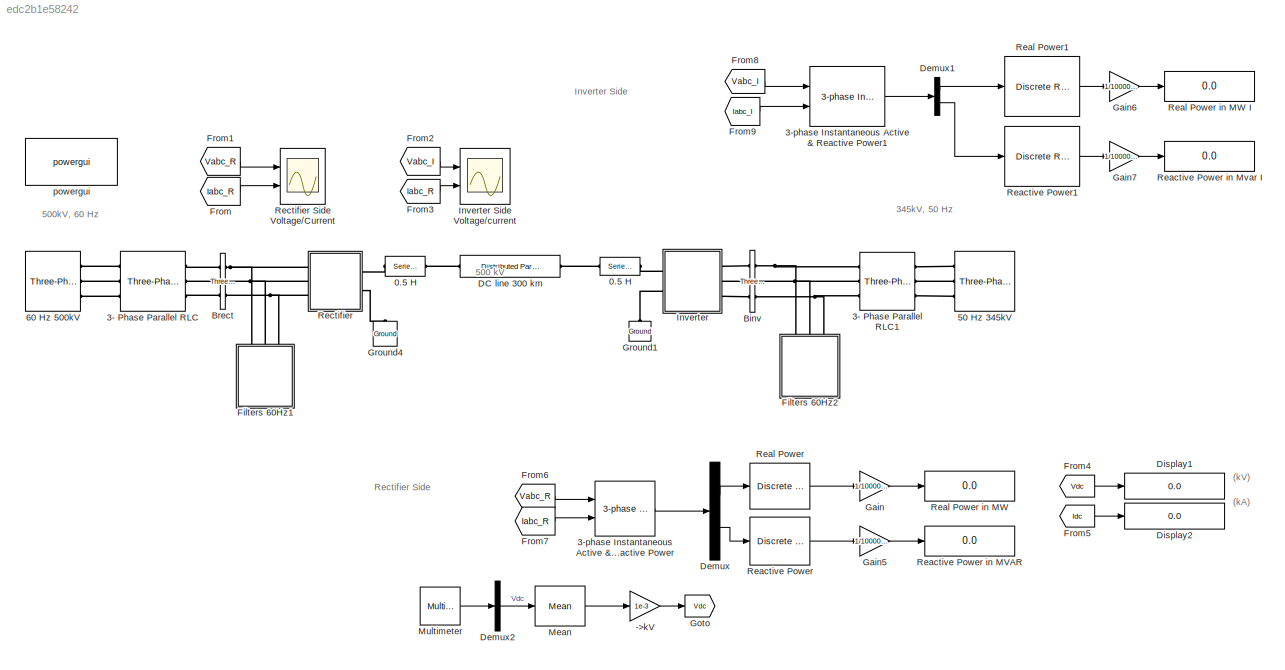
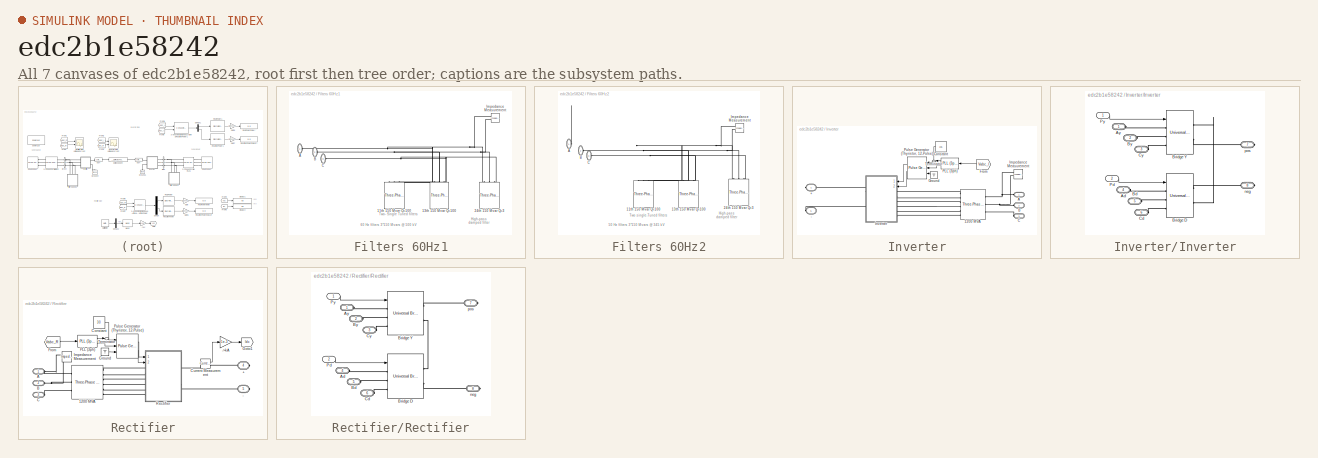
[diagram: thumbnail index - all 7 canvases of the model, root first then tree order]
MODEL slx_edc2b1e58242
KIND model
CONFIG AbsTol = auto
CONFIG EnableMultiTasking = off
CONFIG FixedStep = Ts
CONFIG InitFcn = Ts=50e-6;\n\n% Rectifier AC side :\nVLL_nom_R = 500e3; % V\nFnom_R = 60;           % Hz\n\n% Inverter AC side :\nVLL_nom_I = 345e3; % V\nFnom_I = 50;           % Hz\n\n% DC :\nVdc_nom = 500e3;   % V\nIdc_nom  = 2000;     % A
CONFIG MaxStep = auto
CONFIG MinStep = auto
CONFIG RelTol = 1e-3
CONFIG SampleTimeConstraint = Unconstrained
CONFIG SolverName = FixedStepDiscrete
CONFIG StartTime = 0.0
CONFIG StopTime = 1
BLOCK [Reference]  50 Hz 345kV    REF=spsThreePhaseSourceLib/Three-Phase Source
  Ports = [0, 0, 0, 0, 0, 0, 3]
  SourceBlock = spsThreePhaseSourceLib/Three-Phase Source
  SourceProductBaseCode = PS
  SourceType = Three-Phase Source
BLOCK [Reference]  60 Hz 500kV  REF=spsThreePhaseSourceLib/Three-Phase Source
  Ports = [0, 0, 0, 0, 0, 0, 3]
  SourceBlock = spsThreePhaseSourceLib/Three-Phase Source
  SourceProductBaseCode = PS
  SourceType = Three-Phase Source
BLOCK [Gain] ->kV
  Gain = 1e-3
  OutDataTypeStr = Inherit: Same as input
  ParamDataTypeStr = Inherit: Same as input
  SaturateOnIntegerOverflow = on
BLOCK [Reference] 0.5 H  REF=spsSeriesRLCBranchLib/Series RLC Branch
  AttributesFormatString = \n
  Ports = [0, 0, 0, 0, 0, 1, 1]
  SourceBlock = spsSeriesRLCBranchLib/Series RLC Branch
  SourceProductBaseCode = PS
  SourceType = Series RLC Branch
BLOCK [Reference] 0.5 H   REF=spsSeriesRLCBranchLib/Series RLC Branch
  AttributesFormatString = \n
  Ports = [0, 0, 0, 0, 0, 1, 1]
  SourceBlock = spsSeriesRLCBranchLib/Series RLC Branch
  SourceProductBaseCode = PS
  SourceType = Series RLC Branch
BLOCK [Reference] 3- Phase Parallel RLC  REF=spsThreePhaseParallelRLCBranchLib/Three-Phase
Parallel RLC Branch
  AttributesFormatString = \n
  Ports = [0, 0, 0, 0, 0, 3, 3]
  SourceBlock = spsThreePhaseParallelRLCBranchLib/Three-Phase\nParallel RLC Branch
  SourceProductBaseCode = PS
  SourceType = Three-Phase Parallel RLC Branch
BLOCK [Reference] 3- Phase Parallel RLC1  REF=spsThreePhaseParallelRLCBranchLib/Three-Phase
Parallel RLC Branch
  AttributesFormatString = \n
  NameLocation = top
  Ports = [0, 0, 0, 0, 0, 3, 3]
  SourceBlock = spsThreePhaseParallelRLCBranchLib/Three-Phase\nParallel RLC Branch
  SourceProductBaseCode = PS
  SourceType = Three-Phase Parallel RLC Branch
BLOCK [Reference] 3-phase Instantaneous Active & Reactive Power  REF=powerlib_extras/Measurements/3-phase 
Instantaneous 
Active & Reactive Power
  Ports = [2, 1]
  SourceBlock = powerlib_extras/Measurements/3-phase \nInstantaneous \nActive & Reactive Power
  SourceProductBaseCode = PS
  SourceType = 3-phase instantaneous active and reactive power
BLOCK [Reference] 3-phase Instantaneous Active & Reactive Power1  REF=powerlib_extras/Measurements/3-phase 
Instantaneous 
Active & Reactive Power
  Ports = [2, 1]
  SourceBlock = powerlib_extras/Measurements/3-phase \nInstantaneous \nActive & Reactive Power
  SourceProductBaseCode = PS
  SourceType = 3-phase instantaneous active and reactive power
BLOCK [Reference] Binv  REF=spsThreePhaseVIMeasurementLib/Three-Phase
V-I Measurement
  Ports = [0, 0, 0, 0, 0, 3, 3]
  SourceBlock = spsThreePhaseVIMeasurementLib/Three-Phase\nV-I Measurement
  SourceProductBaseCode = PS
  SourceType = Three-Phase VI Measurement
BLOCK [Reference] Brect  REF=spsThreePhaseVIMeasurementLib/Three-Phase
V-I Measurement
  Ports = [0, 0, 0, 0, 0, 3, 3]
  SourceBlock = spsThreePhaseVIMeasurementLib/Three-Phase\nV-I Measurement
  SourceProductBaseCode = PS
  SourceType = Three-Phase VI Measurement
BLOCK [Reference] DC line 300 km  REF=spsDistributedParametersLineLib/Distributed Parameters Line
  AttributesFormatString = \n
  NameLocation = top
  Ports = [0, 0, 0, 0, 0, 1, 1]
  SourceBlock = spsDistributedParametersLineLib/Distributed Parameters Line
  SourceProductBaseCode = PS
  SourceType = Distributed Parameters Line
BLOCK [Demux] Demux
  Outputs = 2
  Ports = [1, 2]
BLOCK [Demux] Demux1
  Outputs = 2
  Ports = [1, 2]
BLOCK [Demux] Demux2
  DisplayOption = none
  Outputs = [1 ]
  Ports = [1, 1]
BLOCK [Display] Display1
  Decimation = 1
  Format = bank
  Ports = [1]
  SampleTime = Ts*20
BLOCK [Display] Display2
  Decimation = 1
  Format = bank
  Ports = [1]
  SampleTime = Ts*20
BLOCK [SubSystem] Filters 60Hz1
  NameLocation = left
  Ports = [0, 0, 0, 0, 0, 3]
  RequestExecContextInheritance = off
BLOCK [Reference] Filters 60Hz1/11th 150 Mvar Q=100  REF=spsThreePhaseHarmonicFilterLib/Three-Phase
Harmonic Filter
  AttributesFormatString = \n
  NameLocation = left
  Ports = [0, 0, 0, 0, 0, 3]
  SourceBlock = spsThreePhaseHarmonicFilterLib/Three-Phase\nHarmonic Filter
  SourceProductBaseCode = PS
  SourceType = Three-Phase Harmonic Filter
BLOCK [Reference] Filters 60Hz1/13th 150 Mvar Q=100   REF=spsThreePhaseHarmonicFilterLib/Three-Phase
Harmonic Filter
  AttributesFormatString = \n
  NameLocation = left
  Ports = [0, 0, 0, 0, 0, 3]
  SourceBlock = spsThreePhaseHarmonicFilterLib/Three-Phase\nHarmonic Filter
  SourceProductBaseCode = PS
  SourceType = Three-Phase Harmonic Filter
BLOCK [Reference] Filters 60Hz1/24th 150 Mvar Q=3  REF=spsThreePhaseHarmonicFilterLib/Three-Phase
Harmonic Filter
  AttributesFormatString = \n
  NameLocation = left
  Ports = [0, 0, 0, 0, 0, 3]
  SourceBlock = spsThreePhaseHarmonicFilterLib/Three-Phase\nHarmonic Filter
  SourceProductBaseCode = PS
  SourceType = Three-Phase Harmonic Filter
BLOCK [PMIOPort] Filters 60Hz1/A
  Side = Left
BLOCK [PMIOPort] Filters 60Hz1/B
  Port = 2
  Side = Left
BLOCK [PMIOPort] Filters 60Hz1/C
  Port = 3
  Side = Left
BLOCK [Reference] Filters 60Hz1/Impedance Measurement  REF=spsImpedanceMeasurementLib/Impedance Measurement
  NameLocation = right
  Ports = [0, 0, 0, 0, 0, 2]
  SourceBlock = spsImpedanceMeasurementLib/Impedance Measurement
  SourceProductBaseCode = PS
  SourceType = Impedance Measurement
BLOCK [SubSystem] Filters 60Hz2
  NameLocation = left
  Ports = [0, 0, 0, 0, 0, 3]
  RequestExecContextInheritance = off
BLOCK [Reference] Filters 60Hz2/11th 150 Mvar Q=100  REF=spsThreePhaseHarmonicFilterLib/Three-Phase
Harmonic Filter
  AttributesFormatString = \n
  NameLocation = left
  Ports = [0, 0, 0, 0, 0, 3]
  SourceBlock = spsThreePhaseHarmonicFilterLib/Three-Phase\nHarmonic Filter
  SourceProductBaseCode = PS
  SourceType = Three-Phase Harmonic Filter
BLOCK [Reference] Filters 60Hz2/13th 150 Mvar Q=100   REF=spsThreePhaseHarmonicFilterLib/Three-Phase
Harmonic Filter
  AttributesFormatString = \n
  NameLocation = left
  Ports = [0, 0, 0, 0, 0, 3]
  SourceBlock = spsThreePhaseHarmonicFilterLib/Three-Phase\nHarmonic Filter
  SourceProductBaseCode = PS
  SourceType = Three-Phase Harmonic Filter
BLOCK [Reference] Filters 60Hz2/24th 150 Mvar Q=3  REF=spsThreePhaseHarmonicFilterLib/Three-Phase
Harmonic Filter
  AttributesFormatString = \n
  NameLocation = left
  Ports = [0, 0, 0, 0, 0, 3]
  SourceBlock = spsThreePhaseHarmonicFilterLib/Three-Phase\nHarmonic Filter
  SourceProductBaseCode = PS
  SourceType = Three-Phase Harmonic Filter
BLOCK [PMIOPort] Filters 60Hz2/A
  Side = Left
BLOCK [PMIOPort] Filters 60Hz2/B
  Port = 2
  Side = Left
BLOCK [PMIOPort] Filters 60Hz2/C
  Port = 3
  Side = Left
BLOCK [Reference] Filters 60Hz2/Impedance Measurement  REF=spsImpedanceMeasurementLib/Impedance Measurement
  Ports = [0, 0, 0, 0, 0, 2]
  SourceBlock = spsImpedanceMeasurementLib/Impedance Measurement
  SourceProductBaseCode = PS
  SourceType = Impedance Measurement
BLOCK [From] From
  GotoTag = Iabc_R
  TagVisibility = global
BLOCK [From] From1
  GotoTag = Vabc_R
  TagVisibility = global
BLOCK [From] From2
  GotoTag = Vabc_I
  TagVisibility = global
BLOCK [From] From3
  GotoTag = Iabc_R
  TagVisibility = global
BLOCK [From] From4
  CloseFcn = tagdialog Close
  GotoTag = Vdc
  TagVisibility = global
BLOCK [From] From5
  CloseFcn = tagdialog Close
  GotoTag = Idc
  TagVisibility = global
BLOCK [From] From6
  GotoTag = Vabc_R
  TagVisibility = global
BLOCK [From] From7
  GotoTag = Iabc_R
  TagVisibility = global
BLOCK [From] From8
  GotoTag = Vabc_I
  TagVisibility = global
BLOCK [From] From9
  GotoTag = Iabc_I
  TagVisibility = global
BLOCK [Gain] Gain
  Gain = 1/1000000
BLOCK [Gain] Gain5
  Gain = 1/1000000
BLOCK [Gain] Gain6
  Gain = 1/1000000
BLOCK [Gain] Gain7
  Gain = 1/1000000
BLOCK [Goto] Goto
  GotoTag = Vdc
  TagVisibility = global
BLOCK [Reference] Ground1  REF=spsGroundLib/Ground
  AttributesFormatString = \n
  NameLocation = left
  Ports = [0, 0, 0, 0, 0, 1]
  SourceBlock = spsGroundLib/Ground
  SourceProductBaseCode = PS
  SourceType = Ground
BLOCK [Reference] Ground4  REF=spsGroundLib/Ground
  AttributesFormatString = \n
  NameLocation = left
  Ports = [0, 0, 0, 0, 0, 1]
  SourceBlock = spsGroundLib/Ground
  SourceProductBaseCode = PS
  SourceType = Ground
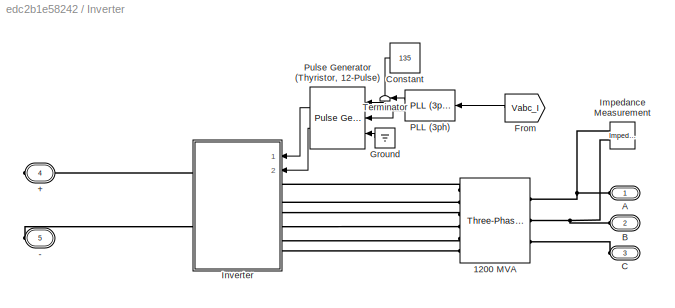
BLOCK [SubSystem] Inverter
  Ports = [0, 0, 0, 0, 0, 3, 2]
  RequestExecContextInheritance = off
BLOCK [Scope] Inverter Side Voltage//current
  Floating = off
  NumInputPorts = 2
  Ports = [2]
  ScopeSpecificationString = Simulink.scopes.TimeScopeBlockCfg('CurrentConfiguration', extmgr.ConfigurationSet(extmgr.Configuration('Core','General UI',true,'FigureColor',[1 1 1]),extmgr.Configuration('Core','Source UI',true),extmgr.Configuration('Sources','WiredSimulink',true,'DataLogging',true,'DataLoggingVariableName','ScopeData1'),extmgr.Configuration('Visuals','Time Domain',true,'SerializedDisplays',{struct('MinYLimReal'...<+3394ch>
BLOCK [PMIOPort] Inverter/+
  Port = 4
  Side = Right
BLOCK [PMIOPort] Inverter/-
  Port = 5
  Side = Right
BLOCK [Reference] Inverter/1200 MVA  REF=spsThreePhaseTransformerThreeWindingsLib/Three-Phase
Transformer
(Three Windings)
  AttributesFormatString = \n
  Ports = [0, 0, 0, 0, 0, 3, 6]
  SourceBlock = spsThreePhaseTransformerThreeWindingsLib/Three-Phase\nTransformer\n(Three Windings)
  SourceProductBaseCode = PS
  SourceType = Three-Phase Transformer (Three Windings)
BLOCK [PMIOPort] Inverter/A
  Side = Left
BLOCK [PMIOPort] Inverter/B
  Port = 2
  Side = Left
BLOCK [PMIOPort] Inverter/C
  Port = 3
  Side = Left
BLOCK [Constant] Inverter/Constant
  Value = 135
BLOCK [From] Inverter/From
  GotoTag = Vabc_I
  TagVisibility = global
BLOCK [Ground] Inverter/Ground
BLOCK [Reference] Inverter/Impedance Measurement  REF=spsImpedanceMeasurementLib/Impedance Measurement
  Ports = [0, 0, 0, 0, 0, 2]
  SourceBlock = spsImpedanceMeasurementLib/Impedance Measurement
  SourceProductBaseCode = PS
  SourceType = Impedance Measurement
BLOCK [SubSystem] Inverter/Inverter
  Ports = [2, 0, 0, 0, 0, 6, 2]
  RequestExecContextInheritance = off
BLOCK [PMIOPort] Inverter/Inverter/Ad
  Port = 4
  Side = Left
BLOCK [PMIOPort] Inverter/Inverter/Ay
  Side = Left
BLOCK [PMIOPort] Inverter/Inverter/Bd
  Port = 5
  Side = Left
BLOCK [Reference] Inverter/Inverter/Bridge D  REF=spsUniversalBridgeLib/Universal Bridge
  AttributesFormatString = \n
  Ports = [1, 0, 0, 0, 0, 3, 2]
  SourceBlock = spsUniversalBridgeLib/Universal Bridge
  SourceProductBaseCode = PS
  SourceType = Universal Bridge
BLOCK [Reference] Inverter/Inverter/Bridge Y  REF=spsUniversalBridgeLib/Universal Bridge
  AttributesFormatString = \n
  Ports = [1, 0, 0, 0, 0, 3, 2]
  SourceBlock = spsUniversalBridgeLib/Universal Bridge
  SourceProductBaseCode = PS
  SourceType = Universal Bridge
BLOCK [PMIOPort] Inverter/Inverter/By
  Port = 2
  Side = Left
BLOCK [PMIOPort] Inverter/Inverter/Cd
  Port = 6
  Side = Left
BLOCK [PMIOPort] Inverter/Inverter/Cy
  Port = 3
  Side = Left
BLOCK [Inport] Inverter/Inverter/Pd
  Port = 2
BLOCK [Inport] Inverter/Inverter/Py
BLOCK [PMIOPort] Inverter/Inverter/neg
  Port = 8
  Side = Right
BLOCK [PMIOPort] Inverter/Inverter/pos
  Port = 7
  Side = Right
BLOCK [Reference] Inverter/PLL (3ph)  REF=spsPLL3phLib/PLL
(3ph)
  Ports = [1, 2]
  SourceBlock = spsPLL3phLib/PLL\n(3ph)
  SourceProductBaseCode = PS
  SourceType = PLL (3ph)
BLOCK [Reference] Inverter/Pulse Generator (Thyristor, 12-Pulse)  REF=spsPulseGeneratorThyristor12PulseLib/Pulse Generator
(Thyristor, 12-Pulse)
  Ports = [3, 2]
  SourceBlock = spsPulseGeneratorThyristor12PulseLib/Pulse Generator\n(Thyristor, 12-Pulse)
  SourceProductBaseCode = PS
  SourceType = Pulse Generator (Thyristor)
BLOCK [Terminator] Inverter/Terminator
BLOCK [Reference] Mean  REF=spsMeanLib/Mean
  Ports = [1, 1]
  SourceBlock = spsMeanLib/Mean
  SourceProductBaseCode = PS
  SourceType = Mean
BLOCK [Reference] Multimeter  REF=spsMultimeterLib/Multimeter
  Ports = [0, 1]
  SourceBlock = spsMultimeterLib/Multimeter
  SourceProductBaseCode = PS
  SourceType = Multimeter
BLOCK [Reference] Reactive Power  REF=powerlib_extras/Discrete
Measurements/Discrete 
RMS value
  Ports = [1, 1]
  SourceBlock = powerlib_extras/Discrete\nMeasurements/Discrete \nRMS value
  SourceProductBaseCode = PS
  SourceType = Discrete RMS value
BLOCK [Display] Reactive Power in MVAR
  Decimation = 1
  Ports = [1]
BLOCK [Display] Reactive Power in Mvar I
  Decimation = 1
  Ports = [1]
BLOCK [Reference] Reactive Power1  REF=powerlib_extras/Discrete
Measurements/Discrete 
RMS value
  Ports = [1, 1]
  SourceBlock = powerlib_extras/Discrete\nMeasurements/Discrete \nRMS value
  SourceProductBaseCode = PS
  SourceType = Discrete RMS value
BLOCK [Reference] Real Power  REF=powerlib_extras/Discrete
Measurements/Discrete 
RMS value
  NameLocation = top
  Ports = [1, 1]
  SourceBlock = powerlib_extras/Discrete\nMeasurements/Discrete \nRMS value
  SourceProductBaseCode = PS
  SourceType = Discrete RMS value
BLOCK [Display] Real Power in MW
  Decimation = 1
  Ports = [1]
BLOCK [Display] Real Power in MW I
  Decimation = 1
  Ports = [1]
BLOCK [Reference] Real Power1  REF=powerlib_extras/Discrete
Measurements/Discrete 
RMS value
  NameLocation = top
  Ports = [1, 1]
  SourceBlock = powerlib_extras/Discrete\nMeasurements/Discrete \nRMS value
  SourceProductBaseCode = PS
  SourceType = Discrete RMS value
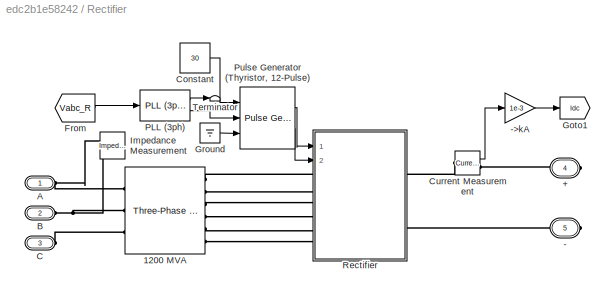
BLOCK [SubSystem] Rectifier
  Ports = [0, 0, 0, 0, 0, 3, 2]
  RequestExecContextInheritance = off
BLOCK [Scope] Rectifier Side Voltage//Current
  Floating = off
  NumInputPorts = 2
  Ports = [2]
  ScopeSpecificationString = Simulink.scopes.TimeScopeBlockCfg('CurrentConfiguration', extmgr.ConfigurationSet(extmgr.Configuration('Core','General UI',true,'FigureColor',[1 1 1]),extmgr.Configuration('Core','Source UI',true),extmgr.Configuration('Sources','WiredSimulink',true,'DataLoggingVariableName','ScopeData2','DataLogging',true,'DataLoggingSaveFormat','StructureWithTime'),extmgr.Configuration('Visuals','Time Domain',tru...<+3408ch>
BLOCK [PMIOPort] Rectifier/+ 
  Port = 4
  Side = Right
BLOCK [PMIOPort] Rectifier/-
  Port = 5
  Side = Right
BLOCK [Gain] Rectifier/->kA
  Gain = 1e-3
  OutDataTypeStr = Inherit: Same as input
  ParamDataTypeStr = Inherit: Same as input
  SaturateOnIntegerOverflow = on
BLOCK [Reference] Rectifier/1200 MVA  REF=spsThreePhaseTransformerThreeWindingsLib/Three-Phase
Transformer
(Three Windings)
  AttributesFormatString = \n
  Ports = [0, 0, 0, 0, 0, 3, 6]
  SourceBlock = spsThreePhaseTransformerThreeWindingsLib/Three-Phase\nTransformer\n(Three Windings)
  SourceProductBaseCode = PS
  SourceType = Three-Phase Transformer (Three Windings)
BLOCK [PMIOPort] Rectifier/A
  Side = Left
BLOCK [PMIOPort] Rectifier/B
  Port = 2
  Side = Left
BLOCK [PMIOPort] Rectifier/C
  Port = 3
  Side = Left
BLOCK [Constant] Rectifier/Constant
  Value = 30
BLOCK [Reference] Rectifier/Current Measurement  REF=spsCurrentMeasurementLib/Current Measurement
  Ports = [0, 1, 0, 0, 0, 1, 1]
  SourceBlock = spsCurrentMeasurementLib/Current Measurement
  SourceProductBaseCode = PS
  SourceType = Current Measurement
  UserDataPersistent = on
BLOCK [From] Rectifier/From
  GotoTag = Vabc_R
  TagVisibility = global
BLOCK [Goto] Rectifier/Goto1
  GotoTag = Idc
  TagVisibility = global
BLOCK [Ground] Rectifier/Ground
BLOCK [Reference] Rectifier/Impedance Measurement  REF=spsImpedanceMeasurementLib/Impedance Measurement
  Ports = [0, 0, 0, 0, 0, 2]
  SourceBlock = spsImpedanceMeasurementLib/Impedance Measurement
  SourceProductBaseCode = PS
  SourceType = Impedance Measurement
BLOCK [Reference] Rectifier/PLL (3ph)  REF=spsPLL3phLib/PLL
(3ph)
  Ports = [1, 2]
  SourceBlock = spsPLL3phLib/PLL\n(3ph)
  SourceProductBaseCode = PS
  SourceType = PLL (3ph)
BLOCK [Reference] Rectifier/Pulse Generator (Thyristor, 12-Pulse)  REF=spsPulseGeneratorThyristor12PulseLib/Pulse Generator
(Thyristor, 12-Pulse)
  Ports = [3, 2]
  SourceBlock = spsPulseGeneratorThyristor12PulseLib/Pulse Generator\n(Thyristor, 12-Pulse)
  SourceProductBaseCode = PS
  SourceType = Pulse Generator (Thyristor)
BLOCK [SubSystem] Rectifier/Rectifier
  Ports = [2, 0, 0, 0, 0, 6, 2]
  RequestExecContextInheritance = off
BLOCK [PMIOPort] Rectifier/Rectifier/Ad
  Port = 4
  Side = Left
BLOCK [PMIOPort] Rectifier/Rectifier/Ay
  Side = Left
BLOCK [PMIOPort] Rectifier/Rectifier/Bd
  Port = 5
  Side = Left
BLOCK [Reference] Rectifier/Rectifier/Bridge D  REF=spsUniversalBridgeLib/Universal Bridge
  AttributesFormatString = \n
  Ports = [1, 0, 0, 0, 0, 3, 2]
  SourceBlock = spsUniversalBridgeLib/Universal Bridge
  SourceProductBaseCode = PS
  SourceType = Universal Bridge
BLOCK [Reference] Rectifier/Rectifier/Bridge Y  REF=spsUniversalBridgeLib/Universal Bridge
  AttributesFormatString = \n
  Ports = [1, 0, 0, 0, 0, 3, 2]
  SourceBlock = spsUniversalBridgeLib/Universal Bridge
  SourceProductBaseCode = PS
  SourceType = Universal Bridge
BLOCK [PMIOPort] Rectifier/Rectifier/By
  Port = 2
  Side = Left
BLOCK [PMIOPort] Rectifier/Rectifier/Cd
  Port = 6
  Side = Left
BLOCK [PMIOPort] Rectifier/Rectifier/Cy
  Port = 3
  Side = Left
BLOCK [Inport] Rectifier/Rectifier/Pd
  Port = 2
BLOCK [Inport] Rectifier/Rectifier/Py
BLOCK [PMIOPort] Rectifier/Rectifier/neg
  Port = 8
  Side = Right
BLOCK [PMIOPort] Rectifier/Rectifier/pos
  Port = 7
  Side = Right
BLOCK [Terminator] Rectifier/Terminator
BLOCK [Reference] powergui  REF=spspowerguiLib/powergui
  Ports = []
  Priority = 2
  SourceBlock = spspowerguiLib/powergui
  SourceProductBaseCode = PS
  SourceType = PSB option menu block
ANNOTATION (root): (kA)
ANNOTATION (root): (kV)
ANNOTATION (root): 345kV, 50 Hz
ANNOTATION (root): 500kV, 60 Hz
ANNOTATION (root): 500 kV
ANNOTATION (root): Inverter Side
ANNOTATION (root): Rectifier Side
ANNOTATION Filters 60Hz1: 60 Hz filters 3*150 Mvars @ 500 kV
ANNOTATION Filters 60Hz1: High-pass damped filter
ANNOTATION Filters 60Hz1: Two- Single Tuned filters
ANNOTATION Filters 60Hz2: 50 Hz filters 3*150 Mvars @ 345 kV
ANNOTATION Filters 60Hz2: High-pass damped filter
ANNOTATION Filters 60Hz2: Two single-Tuned filters
LINE ->kV:1 -> Goto:1
LINE 3-phase Instantaneous Active & Reactive Power1:1 -> Demux1:1
LINE 3-phase Instantaneous Active & Reactive Power:1 -> Demux:1
LINE Demux1:1 -> Real Power1:1
LINE Demux1:2 -> Reactive Power1:1
LINE Demux2:1 -> Mean:1
LINE Demux:1 -> Real Power:1
LINE Demux:2 -> Reactive Power:1
LINE From1:1 -> Rectifier Side Voltage//Current:1
LINE From2:1 -> Inverter Side Voltage//current:1
LINE From3:1 -> Inverter Side Voltage//current:2
LINE From4:1 -> Display1:1
LINE From5:1 -> Display2:1
LINE From6:1 -> 3-phase Instantaneous Active & Reactive Power:1
LINE From7:1 -> 3-phase Instantaneous Active & Reactive Power:2
LINE From8:1 -> 3-phase Instantaneous Active & Reactive Power1:1
LINE From9:1 -> 3-phase Instantaneous Active & Reactive Power1:2
LINE From:1 -> Rectifier Side Voltage//Current:2
LINE Gain5:1 -> Reactive Power in MVAR:1
LINE Gain6:1 -> Real Power in MW I:1
LINE Gain7:1 -> Reactive Power in Mvar I:1
LINE Gain:1 -> Real Power in MW:1
LINE Inverter/Constant:1 -> Inverter/Pulse Generator (Thyristor, 12-Pulse):1
LINE Inverter/From:1 -> Inverter/PLL (3ph):1
LINE Inverter/Ground:1 -> Inverter/Pulse Generator (Thyristor, 12-Pulse):3
LINE Inverter/Inverter/Pd:1 -> Inverter/Inverter/Bridge D:1
LINE Inverter/Inverter/Py:1 -> Inverter/Inverter/Bridge Y:1
LINE Inverter/PLL (3ph):1 -> Inverter/Terminator:1
LINE Inverter/PLL (3ph):2 -> Inverter/Pulse Generator (Thyristor, 12-Pulse):2
LINE Inverter/Pulse Generator (Thyristor, 12-Pulse):1 -> Inverter/Inverter:1
LINE Inverter/Pulse Generator (Thyristor, 12-Pulse):2 -> Inverter/Inverter:2
LINE Mean:1 -> ->kV:1
LINE Multimeter:1 -> Demux2:1
LINE Reactive Power1:1 -> Gain7:1
LINE Reactive Power:1 -> Gain5:1
LINE Real Power1:1 -> Gain6:1
LINE Real Power:1 -> Gain:1
LINE Rectifier/->kA:1 -> Rectifier/Goto1:1
LINE Rectifier/Constant:1 -> Rectifier/Pulse Generator (Thyristor, 12-Pulse):1
LINE Rectifier/Current Measurement:1 -> Rectifier/->kA:1
LINE Rectifier/From:1 -> Rectifier/PLL (3ph):1
LINE Rectifier/Ground:1 -> Rectifier/Pulse Generator (Thyristor, 12-Pulse):3
LINE Rectifier/PLL (3ph):1 -> Rectifier/Terminator:1
LINE Rectifier/PLL (3ph):2 -> Rectifier/Pulse Generator (Thyristor, 12-Pulse):2
LINE Rectifier/Pulse Generator (Thyristor, 12-Pulse):1 -> Rectifier/Rectifier:1
LINE Rectifier/Pulse Generator (Thyristor, 12-Pulse):2 -> Rectifier/Rectifier:2
LINE Rectifier/Rectifier/Pd:1 -> Rectifier/Rectifier/Bridge D:1
LINE Rectifier/Rectifier/Py:1 -> Rectifier/Rectifier/Bridge Y:1
PLINE  50 Hz 345kV  :RConn1 -- 3- Phase Parallel RLC1:LConn1
PLINE  50 Hz 345kV  :RConn2 -- 3- Phase Parallel RLC1:LConn2
PLINE  50 Hz 345kV  :RConn3 -- 3- Phase Parallel RLC1:LConn3
PLINE  60 Hz 500kV:RConn1 -- 3- Phase Parallel RLC:LConn1
PLINE  60 Hz 500kV:RConn2 -- 3- Phase Parallel RLC:LConn2
PLINE  60 Hz 500kV:RConn3 -- 3- Phase Parallel RLC:LConn3
PLINE 0.5 H :LConn1 -- Inverter:RConn1
PLINE 0.5 H :RConn1 -- DC line 300 km:RConn1
PLINE 0.5 H:LConn1 -- Rectifier:RConn1
PLINE 0.5 H:RConn1 -- DC line 300 km:LConn1
PNET net1: 3- Phase Parallel RLC1:RConn1 -- Binv:LConn1 -- Filters 60Hz2:LConn1
PNET net2: 3- Phase Parallel RLC1:RConn2 -- Binv:LConn2 -- Filters 60Hz2:LConn2
PNET net3: 3- Phase Parallel RLC1:RConn3 -- Binv:LConn3 -- Filters 60Hz2:LConn3
PLINE 3- Phase Parallel RLC:RConn1 -- Brect:LConn1
PLINE 3- Phase Parallel RLC:RConn2 -- Brect:LConn2
PLINE 3- Phase Parallel RLC:RConn3 -- Brect:LConn3
PLINE Binv:RConn1 -- Inverter:LConn1
PLINE Binv:RConn2 -- Inverter:LConn2
PLINE Binv:RConn3 -- Inverter:LConn3
PNET net4: Brect:RConn1 -- Filters 60Hz1:LConn1 -- Rectifier:LConn1
PNET net5: Brect:RConn2 -- Filters 60Hz1:LConn2 -- Rectifier:LConn2
PNET net6: Brect:RConn3 -- Filters 60Hz1:LConn3 -- Rectifier:LConn3
PNET net7: Filters 60Hz1/11th 150 Mvar Q=100:LConn1 -- Filters 60Hz1/13th 150 Mvar Q=100 :LConn1 -- Filters 60Hz1/24th 150 Mvar Q=3:LConn1 -- Filters 60Hz1/A:RConn1 -- Filters 60Hz1/Impedance Measurement:LConn1
PNET net8: Filters 60Hz1/11th 150 Mvar Q=100:LConn2 -- Filters 60Hz1/13th 150 Mvar Q=100 :LConn2 -- Filters 60Hz1/24th 150 Mvar Q=3:LConn2 -- Filters 60Hz1/B:RConn1 -- Filters 60Hz1/Impedance Measurement:LConn2
PNET net9: Filters 60Hz1/11th 150 Mvar Q=100:LConn3 -- Filters 60Hz1/13th 150 Mvar Q=100 :LConn3 -- Filters 60Hz1/24th 150 Mvar Q=3:LConn3 -- Filters 60Hz1/C:RConn1
PNET net10: Filters 60Hz2/11th 150 Mvar Q=100:LConn1 -- Filters 60Hz2/13th 150 Mvar Q=100 :LConn1 -- Filters 60Hz2/24th 150 Mvar Q=3:LConn1 -- Filters 60Hz2/A:RConn1 -- Filters 60Hz2/Impedance Measurement:LConn1
PNET net11: Filters 60Hz2/11th 150 Mvar Q=100:LConn2 -- Filters 60Hz2/13th 150 Mvar Q=100 :LConn2 -- Filters 60Hz2/24th 150 Mvar Q=3:LConn2 -- Filters 60Hz2/B:RConn1 -- Filters 60Hz2/Impedance Measurement:LConn2
PNET net12: Filters 60Hz2/11th 150 Mvar Q=100:LConn3 -- Filters 60Hz2/13th 150 Mvar Q=100 :LConn3 -- Filters 60Hz2/24th 150 Mvar Q=3:LConn3 -- Filters 60Hz2/C:RConn1
PLINE Ground1:LConn1 -- Inverter:RConn2
PLINE Ground4:LConn1 -- Rectifier:RConn2
PLINE Inverter/+:RConn1 -- Inverter/Inverter:RConn1
PLINE Inverter/-:RConn1 -- Inverter/Inverter:RConn2
PNET net13: Inverter/1200 MVA:LConn1 -- Inverter/A:RConn1 -- Inverter/Impedance Measurement:LConn1
PNET net14: Inverter/1200 MVA:LConn2 -- Inverter/B:RConn1 -- Inverter/Impedance Measurement:LConn2
PLINE Inverter/1200 MVA:LConn3 -- Inverter/C:RConn1
PLINE Inverter/1200 MVA:RConn1 -- Inverter/Inverter:LConn1
PLINE Inverter/1200 MVA:RConn2 -- Inverter/Inverter:LConn2
PLINE Inverter/1200 MVA:RConn3 -- Inverter/Inverter:LConn3
PLINE Inverter/1200 MVA:RConn4 -- Inverter/Inverter:LConn4
PLINE Inverter/1200 MVA:RConn5 -- Inverter/Inverter:LConn5
PLINE Inverter/1200 MVA:RConn6 -- Inverter/Inverter:LConn6
PLINE Inverter/Inverter/Ad:RConn1 -- Inverter/Inverter/Bridge D:LConn1
PLINE Inverter/Inverter/Ay:RConn1 -- Inverter/Inverter/Bridge Y:LConn1
PLINE Inverter/Inverter/Bd:RConn1 -- Inverter/Inverter/Bridge D:LConn2
PLINE Inverter/Inverter/Bridge D:LConn3 -- Inverter/Inverter/Cd:RConn1
PLINE Inverter/Inverter/Bridge D:RConn1 -- Inverter/Inverter/neg:RConn1
PLINE Inverter/Inverter/Bridge D:RConn2 -- Inverter/Inverter/Bridge Y:RConn1
PLINE Inverter/Inverter/Bridge Y:LConn2 -- Inverter/Inverter/By:RConn1
PLINE Inverter/Inverter/Bridge Y:LConn3 -- Inverter/Inverter/Cy:RConn1
PLINE Inverter/Inverter/Bridge Y:RConn2 -- Inverter/Inverter/pos:RConn1
PLINE Rectifier/+ :RConn1 -- Rectifier/Current Measurement:RConn1
PLINE Rectifier/-:RConn1 -- Rectifier/Rectifier:RConn2
PNET net15: Rectifier/1200 MVA:LConn1 -- Rectifier/A:RConn1 -- Rectifier/Impedance Measurement:LConn1
PNET net16: Rectifier/1200 MVA:LConn2 -- Rectifier/B:RConn1 -- Rectifier/Impedance Measurement:LConn2
PLINE Rectifier/1200 MVA:LConn3 -- Rectifier/C:RConn1
PLINE Rectifier/1200 MVA:RConn1 -- Rectifier/Rectifier:LConn1
PLINE Rectifier/1200 MVA:RConn2 -- Rectifier/Rectifier:LConn2
PLINE Rectifier/1200 MVA:RConn3 -- Rectifier/Rectifier:LConn3
PLINE Rectifier/1200 MVA:RConn4 -- Rectifier/Rectifier:LConn4
PLINE Rectifier/1200 MVA:RConn5 -- Rectifier/Rectifier:LConn5
PLINE Rectifier/1200 MVA:RConn6 -- Rectifier/Rectifier:LConn6
PLINE Rectifier/Current Measurement:LConn1 -- Rectifier/Rectifier:RConn1
PLINE Rectifier/Rectifier/Ad:RConn1 -- Rectifier/Rectifier/Bridge D:LConn1
PLINE Rectifier/Rectifier/Ay:RConn1 -- Rectifier/Rectifier/Bridge Y:LConn1
PLINE Rectifier/Rectifier/Bd:RConn1 -- Rectifier/Rectifier/Bridge D:LConn2
PLINE Rectifier/Rectifier/Bridge D:LConn3 -- Rectifier/Rectifier/Cd:RConn1
PLINE Rectifier/Rectifier/Bridge D:RConn1 -- Rectifier/Rectifier/Bridge Y:RConn2
PLINE Rectifier/Rectifier/Bridge D:RConn2 -- Rectifier/Rectifier/neg:RConn1
PLINE Rectifier/Rectifier/Bridge Y:LConn2 -- Rectifier/Rectifier/By:RConn1
PLINE Rectifier/Rectifier/Bridge Y:LConn3 -- Rectifier/Rectifier/Cy:RConn1
PLINE Rectifier/Rectifier/Bridge Y:RConn1 -- Rectifier/Rectifier/pos:RConn1
note: PNET lines group multi-terminal physical nets as a canonical sorted terminal list (undirected conserving connections); 2-terminal nets keep the pairwise PLINE form
